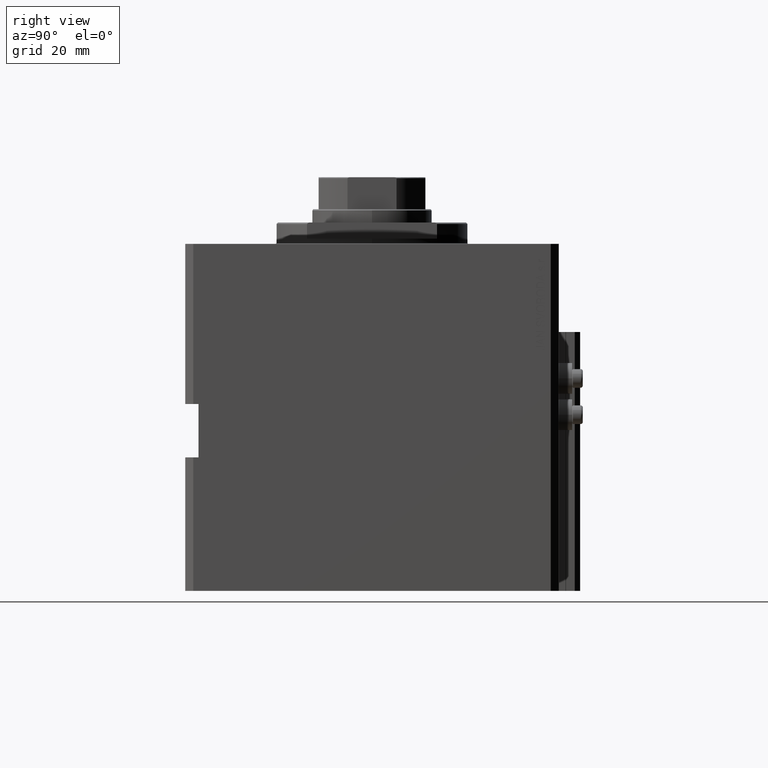
[diagram: clean part render]
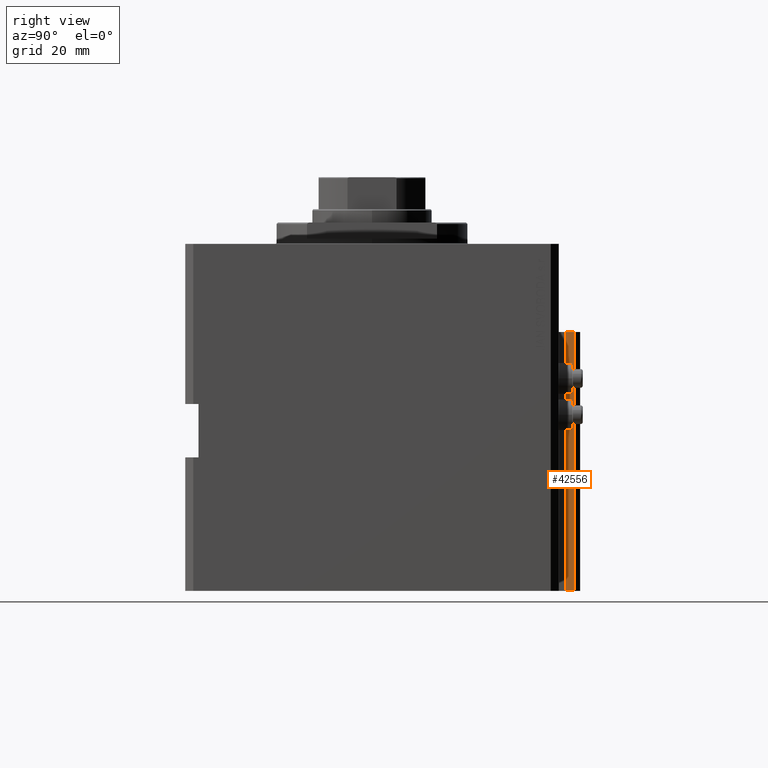
[diagram: same view with one face highlighted and labeled with its STEP entity id]
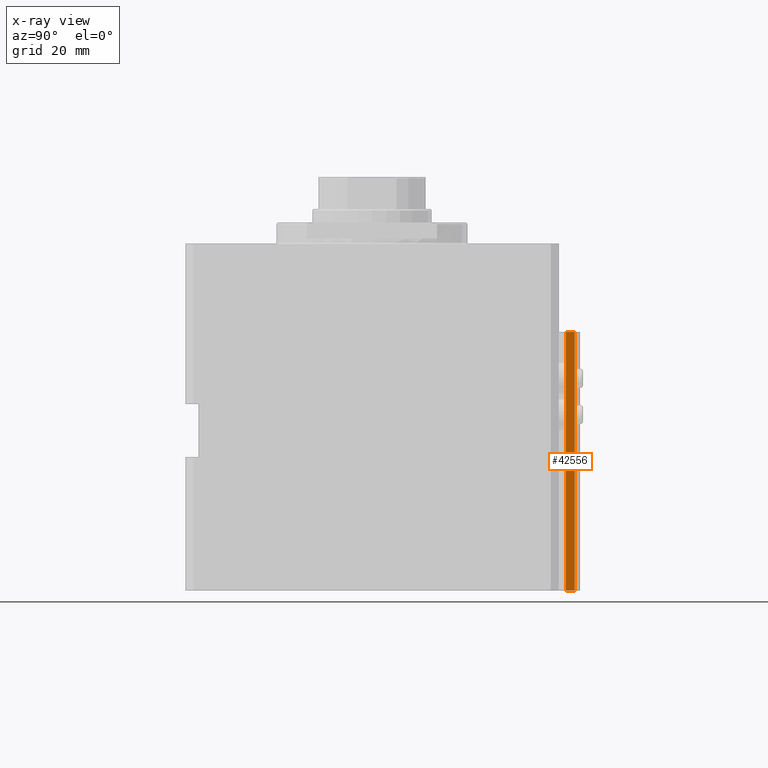
[diagram: x-ray of the same camera — body ghosted, the highlighted face saturated]
A machine part, right view. The second image highlights one B-rep face of the part: STEP entity #42556.
The next image is the same camera in x-ray: the body ghosted, the highlighted face saturated — about 0% of this face is hidden behind the body in this view.
In plain terms, the highlighted planar face has unit normal (1, 0, 0).
Its self-contained STEP definition (entity closure, byte-faithful):
#294 = FACE_OUTER_BOUND ( 'NONE', #37075, .T. ) ;
#632 = EDGE_CURVE ( 'NONE', #12803, #17613, #3624, .T. ) ;
#2375 = EDGE_CURVE ( 'NONE', #17613, #38902, #26464, .T. ) ;
#2864 = CARTESIAN_POINT ( 'NONE',  ( 12.00000000000000000, 76.00000000000002842, -130.0000000000000000 ) ) ;
#3624 = LINE ( 'NONE', #45488, #23182 ) ;
#4263 = LINE ( 'NONE', #30455, #17063 ) ;
#6930 = ORIENTED_EDGE ( 'NONE', *, *, #2375, .F. ) ;
#8367 = VECTOR ( 'NONE', #29420, 1000.000000000000000 ) ;
#11722 = EDGE_CURVE ( 'NONE', #26254, #38902, #45487, .T. ) ;
#12803 = VERTEX_POINT ( 'NONE', #18096 ) ;
#15598 = DIRECTION ( 'NONE',  ( 0.000000000000000000, 0.000000000000000000, 1.000000000000000000 ) ) ;
#16068 = CARTESIAN_POINT ( 'NONE',  ( 12.00000000000000000, 76.00000000000002842, -130.0000000000000000 ) ) ;
#17063 = VECTOR ( 'NONE', #45407, 1000.000000000000000 ) ;
#17500 = ORIENTED_EDGE ( 'NONE', *, *, #42406, .T. ) ;
#17613 = VERTEX_POINT ( 'NONE', #22345 ) ;
#18096 = CARTESIAN_POINT ( 'NONE',  ( 11.99999999999999822, 72.70000000000003126, -130.0000000000000000 ) ) ;
#22345 = CARTESIAN_POINT ( 'NONE',  ( 11.99999999999999822, 72.70000000000003126, -33.00000000000000000 ) ) ;
#23182 = VECTOR ( 'NONE', #30063, 1000.000000000000000 ) ;
#26254 = VERTEX_POINT ( 'NONE', #2864 ) ;
#26416 = AXIS2_PLACEMENT_3D ( 'NONE', #38233, #41440, #45589 ) ;
#26464 = LINE ( 'NONE', #26701, #8367 ) ;
#26701 = CARTESIAN_POINT ( 'NONE',  ( 12.00000000000000178, 72.70000000000003126, -33.00000000000000000 ) ) ;
#29420 = DIRECTION ( 'NONE',  ( -5.256737805990328981E-16, 1.000000000000000000, 0.000000000000000000 ) ) ;
#30063 = DIRECTION ( 'NONE',  ( 0.000000000000000000, 0.000000000000000000, 1.000000000000000000 ) ) ;
#30255 = CARTESIAN_POINT ( 'NONE',  ( 12.00000000000000000, 76.00000000000002842, -33.00000000000000000 ) ) ;
#30455 = CARTESIAN_POINT ( 'NONE',  ( 12.00000000000000178, 72.70000000000003126, -130.0000000000000000 ) ) ;
#30879 = PLANE ( 'NONE',  #26416 ) ;
#32945 = VECTOR ( 'NONE', #15598, 1000.000000000000000 ) ;
#37075 = EDGE_LOOP ( 'NONE', ( #6930, #47987, #17500, #40577 ) ) ;
#38233 = CARTESIAN_POINT ( 'NONE',  ( 12.00000000000000178, 72.70000000000003126, -130.0000000000000000 ) ) ;
#38902 = VERTEX_POINT ( 'NONE', #30255 ) ;
#40577 = ORIENTED_EDGE ( 'NONE', *, *, #11722, .T. ) ;
#41440 = DIRECTION ( 'NONE',  ( 1.000000000000000000, 5.256737805990329967E-16, -0.000000000000000000 ) ) ;
#42406 = EDGE_CURVE ( 'NONE', #12803, #26254, #4263, .T. ) ;
#42556 = ADVANCED_FACE ( 'NONE', ( #294 ), #30879, .T. ) ;
#45407 = DIRECTION ( 'NONE',  ( -5.256737805990328981E-16, 1.000000000000000000, 0.000000000000000000 ) ) ;
#45487 = LINE ( 'NONE', #16068, #32945 ) ;
#45488 = CARTESIAN_POINT ( 'NONE',  ( 11.99999999999999822, 72.70000000000003126, -130.0000000000000000 ) ) ;
#45589 = DIRECTION ( 'NONE',  ( -5.256737805990329967E-16, 1.000000000000000000, 0.000000000000000000 ) ) ;
#47987 = ORIENTED_EDGE ( 'NONE', *, *, #632, .F. ) ;